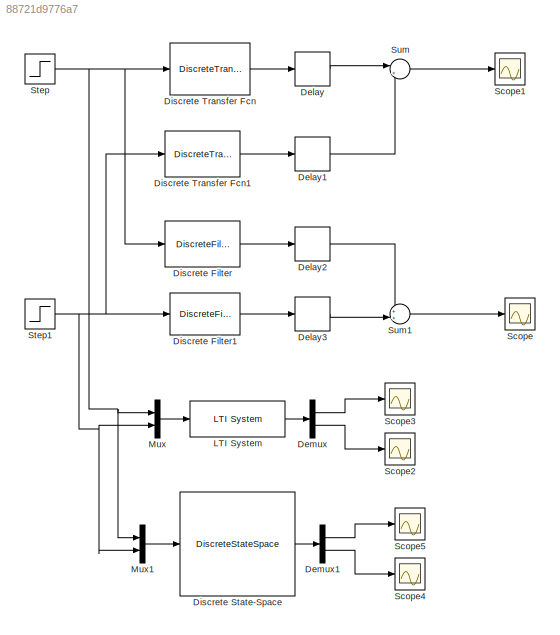
MODEL slx_88721d9776a7
KIND model
CONFIG AbsTol = auto
CONFIG EnableMultiTasking = off
CONFIG FixedStep = 0.5
CONFIG MaxStep = auto
CONFIG MinStep = auto
CONFIG RelTol = 1e-3
CONFIG SampleTimeConstraint = Unconstrained
CONFIG SolverName = FixedStepDiscrete
CONFIG StartTime = 0.0
CONFIG StopTime = 300
BLOCK [Delay] Delay
  InputPortMap = u0
BLOCK [Delay] Delay1
  DelayLength = 6
  InputPortMap = u0
  SampleTime = 0.5
BLOCK [Delay] Delay2
  DelayLength = 14
  InputPortMap = u0
BLOCK [Delay] Delay3
  DelayLength = 6
  InputPortMap = u0
BLOCK [Demux] Demux
  Outputs = 2
BLOCK [Demux] Demux1
  Outputs = 2
BLOCK [DiscreteFilter] Discrete Filter
  Denominator = [1 -0.9552]
  InputPortMap = u0
  Numerator = [0 0.2959]
  SampleTime = 0.5
BLOCK [DiscreteFilter] Discrete Filter1
  Denominator = [1 -0.9659]
  InputPortMap = u0
  Numerator = [0 -0.6621]
  SampleTime = 0.5
BLOCK [DiscreteStateSpace] Discrete State-Space
  A = Ad
  B = Bd
  C = Cd
  D = Dd
  SampleTime = 0.5
BLOCK [DiscreteTransferFcn] Discrete Transfer Fcn
  Denominator = [1 -0.9705]
  InputPortMap = u0
  Numerator = [0.3776]
  SampleTime = 0.5
BLOCK [DiscreteTransferFcn] Discrete Transfer Fcn1
  Denominator = [1 -0.9765]
  InputPortMap = u0
  Numerator = [-0.447]
BLOCK [Reference] LTI System  REF=cstblocks/LTI System
  SourceBlock = cstblocks/LTI System
  SourceType = LTI Block
BLOCK [Mux] Mux
  DisplayOption = bar
  Inputs = 2
BLOCK [Mux] Mux1
  DisplayOption = bar
  Inputs = 2
BLOCK [Scope] Scope
  Floating = off
  NumInputPorts = 1
  ScopeSpecificationString = C++SS(StrPVP('Open','off'),StrPVP('TimeRange','auto'),StrPVP('TickLabels','OneTimeTick'),StrPVP('ShowLegends','off'),StrPVP('LimitDataPoints','off'),StrPVP('MaxDataPoints','5000'),StrPVP('SaveToWorkspace','off'),StrPVP('SaveName','ScopeData'),StrPVP('YMin','-15.21931'),StrPVP('YMax','8.85868'),StrPVP('BlockParamSampleInput','off'),StrPVP('BlockParamSampleTime','-1'),StrPVP('ZoomMode','on'),StrPVP(...<+773ch>
BLOCK [Scope] Scope1
  Floating = off
  NumInputPorts = 1
  ScopeSpecificationString = C++SS(StrPVP('Open','off'),StrPVP('TimeRange','auto'),StrPVP('TickLabels','OneTimeTick'),StrPVP('ShowLegends','off'),StrPVP('LimitDataPoints','off'),StrPVP('MaxDataPoints','5000'),StrPVP('SaveToWorkspace','off'),StrPVP('SaveName','ScopeData1'),StrPVP('YMin','-8.50289'),StrPVP('YMax','14.31478'),StrPVP('BlockParamSampleInput','off'),StrPVP('BlockParamSampleTime','-1'),StrPVP('ZoomMode','on'),StrPVP...<+772ch>
BLOCK [Scope] Scope2
  Floating = off
  NumInputPorts = 1
  ScopeSpecificationString = C++SS(StrPVP('Open','off'),StrPVP('TimeRange','auto'),StrPVP('TickLabels','OneTimeTick'),StrPVP('ShowLegends','off'),StrPVP('LimitDataPoints','off'),StrPVP('MaxDataPoints','5000'),StrPVP('SaveToWorkspace','off'),StrPVP('SaveName','ScopeData2'),StrPVP('YMin','-15.20582'),StrPVP('YMax','8.85237'),StrPVP('BlockParamSampleInput','off'),StrPVP('BlockParamSampleTime','-1'),StrPVP('ZoomMode','on'),StrPVP...<+768ch>
BLOCK [Scope] Scope3
  Floating = off
  NumInputPorts = 1
  ScopeSpecificationString = C++SS(StrPVP('Open','off'),StrPVP('TimeRange','auto'),StrPVP('TickLabels','OneTimeTick'),StrPVP('ShowLegends','off'),StrPVP('LimitDataPoints','off'),StrPVP('MaxDataPoints','5000'),StrPVP('SaveToWorkspace','off'),StrPVP('SaveName','ScopeData3'),StrPVP('YMin','-8.36643'),StrPVP('YMax','14.29931'),StrPVP('BlockParamSampleInput','off'),StrPVP('BlockParamSampleTime','-1'),StrPVP('ZoomMode','on'),StrPVP...<+774ch>
BLOCK [Scope] Scope4
  Floating = off
  NumInputPorts = 1
  ScopeSpecificationString = C++SS(StrPVP('Open','off'),StrPVP('TimeRange','auto'),StrPVP('TickLabels','OneTimeTick'),StrPVP('ShowLegends','off'),StrPVP('LimitDataPoints','off'),StrPVP('MaxDataPoints','5000'),StrPVP('SaveToWorkspace','off'),StrPVP('SaveName','ScopeData4'),StrPVP('YMin','-15.21171'),StrPVP('YMax','8.9054'),StrPVP('BlockParamSampleInput','off'),StrPVP('BlockParamSampleTime','-1'),StrPVP('ZoomMode','on'),StrPVP(...<+767ch>
BLOCK [Scope] Scope5
  Floating = off
  NumInputPorts = 1
  ScopeSpecificationString = C++SS(StrPVP('Open','off'),StrPVP('TimeRange','auto'),StrPVP('TickLabels','OneTimeTick'),StrPVP('ShowLegends','off'),StrPVP('LimitDataPoints','off'),StrPVP('MaxDataPoints','5000'),StrPVP('SaveToWorkspace','off'),StrPVP('SaveName','ScopeData5'),StrPVP('YMin','-8.35425'),StrPVP('YMax','14.1895'),StrPVP('BlockParamSampleInput','off'),StrPVP('BlockParamSampleTime','-1'),StrPVP('ZoomMode','on'),StrPVP(...<+773ch>
BLOCK [Step] Step
  SampleTime = 0.5
  Time = 5
BLOCK [Step] Step1
  SampleTime = 0.5
  Time = 50
BLOCK [Sum] Sum
  Inputs = |++
BLOCK [Sum] Sum1
  Inputs = ++|
LINE Delay1:1 -> Sum:2
LINE Delay2:1 -> Sum1:1
LINE Delay3:1 -> Sum1:2
LINE Delay:1 -> Sum:1
LINE Demux1:1 -> Scope5:1
LINE Demux1:2 -> Scope4:1
LINE Demux:1 -> Scope3:1
LINE Demux:2 -> Scope2:1
LINE Discrete Filter1:1 -> Delay3:1
LINE Discrete Filter:1 -> Delay2:1
LINE Discrete State-Space:1 -> Demux1:1
LINE Discrete Transfer Fcn1:1 -> Delay1:1
LINE Discrete Transfer Fcn:1 -> Delay:1
LINE LTI System:1 -> Demux:1
LINE Mux1:1 -> Discrete State-Space:1
LINE Mux:1 -> LTI System:1
NET Step1:1 -> Discrete Filter1:1, Discrete Transfer Fcn1:1, Mux1:2, Mux:2
NET Step:1 -> Discrete Filter:1, Discrete Transfer Fcn:1, Mux1:1, Mux:1
LINE Sum1:1 -> Scope:1
LINE Sum:1 -> Scope1:1
note: NET lines group one-source signal fan-out (src -> all destinations, sorted); 1:1 wires keep LINE
